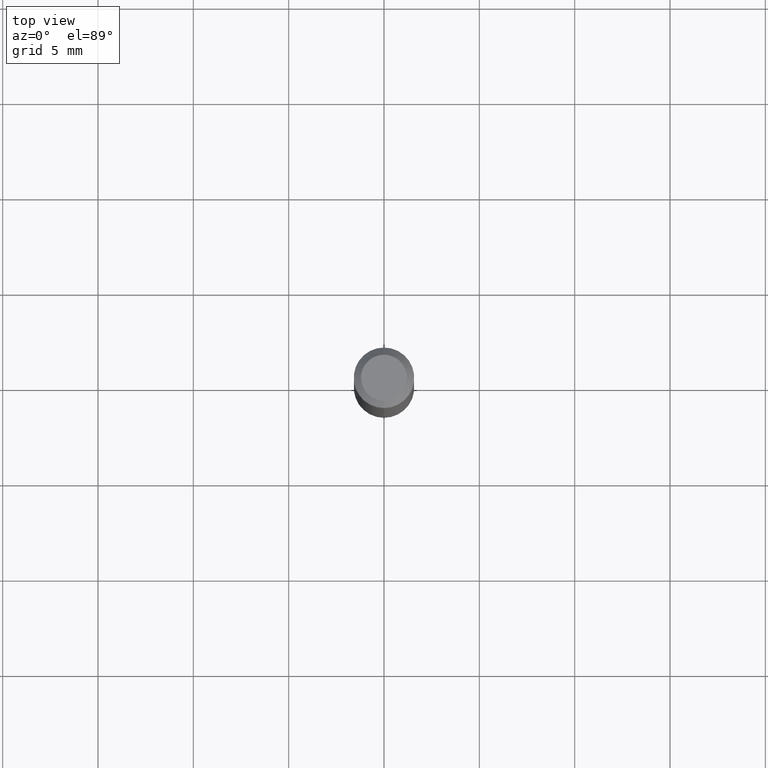
[diagram: clean part render]
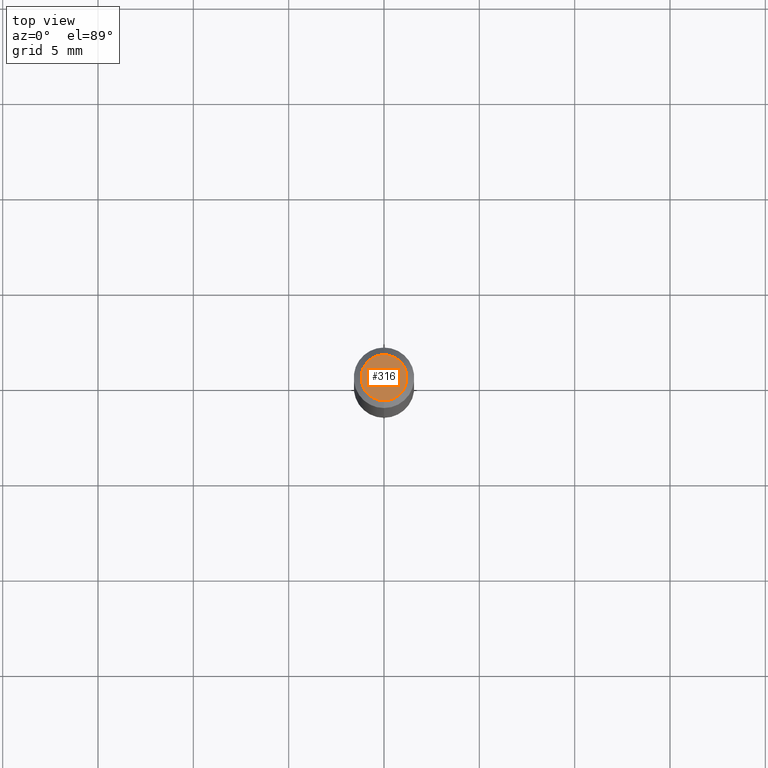
[diagram: same view with one face highlighted and labeled with its STEP entity id]
A machine part, top view. The second image highlights one B-rep face of the part: STEP entity #316.
In plain terms, the highlighted planar face has unit normal (0, -0, -1).
Its self-contained STEP definition (entity closure, byte-faithful):
#29 = AXIS2_PLACEMENT_3D ( 'NONE', #214, #184, #414 ) ;
#31 = EDGE_LOOP ( 'NONE', ( #55, #61 ) ) ;
#52 = CARTESIAN_POINT ( 'NONE',  ( 3.316907271900976096E-16, 0.04749999999999999362, -1.985944099982878842E-16 ) ) ;
#55 = ORIENTED_EDGE ( 'NONE', *, *, #133, .T. ) ;
#61 = ORIENTED_EDGE ( 'NONE', *, *, #370, .T. ) ;
#120 = DIRECTION ( 'NONE',  ( -6.982962677686266711E-15, -1.000000000000000000, 3.491436259981688244E-15 ) ) ;
#133 = EDGE_CURVE ( 'NONE', #506, #384, #381, .T. ) ;
#143 = CIRCLE ( 'NONE', #29, 0.04749999999999999362 ) ;
#155 = AXIS2_PLACEMENT_3D ( 'NONE', #52, #367, #451 ) ;
#175 = FACE_OUTER_BOUND ( 'NONE', #31, .T. ) ;
#184 = DIRECTION ( 'NONE',  ( -2.445500284585847843E-29, 3.491436259981687850E-15, 1.000000000000000000 ) ) ;
#214 = CARTESIAN_POINT ( 'NONE',  ( 1.601860774330794384E-45, -2.286973682314673928E-31, -6.550237529831545081E-17 ) ) ;
#243 = CARTESIAN_POINT ( 'NONE',  ( 1.601860774330794384E-45, -2.286973682314673928E-31, -6.550237529831545081E-17 ) ) ;
#254 = CARTESIAN_POINT ( 'NONE',  ( -3.773273898774340269E-16, -0.04749999999999999362, 1.003408470508147142E-16 ) ) ;
#316 = ADVANCED_FACE ( 'NONE', ( #175 ), #409, .F. ) ;
#356 = AXIS2_PLACEMENT_3D ( 'NONE', #243, #402, #120 ) ;
#367 = DIRECTION ( 'NONE',  ( 2.445500284585847563E-29, -3.491436259981687850E-15, -1.000000000000000000 ) ) ;
#370 = EDGE_CURVE ( 'NONE', #384, #506, #143, .T. ) ;
#378 = CARTESIAN_POINT ( 'NONE',  ( 3.840629472727447874E-16, 0.04749999999999999362, -2.313455976474456035E-16 ) ) ;
#381 = CIRCLE ( 'NONE', #356, 0.04749999999999999362 ) ;
#384 = VERTEX_POINT ( 'NONE', #254 ) ;
#402 = DIRECTION ( 'NONE',  ( -2.445500284585847843E-29, 3.491436259981687850E-15, 1.000000000000000000 ) ) ;
#409 = PLANE ( 'NONE',  #155 ) ;
#414 = DIRECTION ( 'NONE',  ( -6.982962677686266711E-15, -1.000000000000000000, 3.491436259981688244E-15 ) ) ;
#451 = DIRECTION ( 'NONE',  ( 6.982962677686265922E-15, 1.000000000000000000, -3.491436259981687850E-15 ) ) ;
#506 = VERTEX_POINT ( 'NONE', #378 ) ;